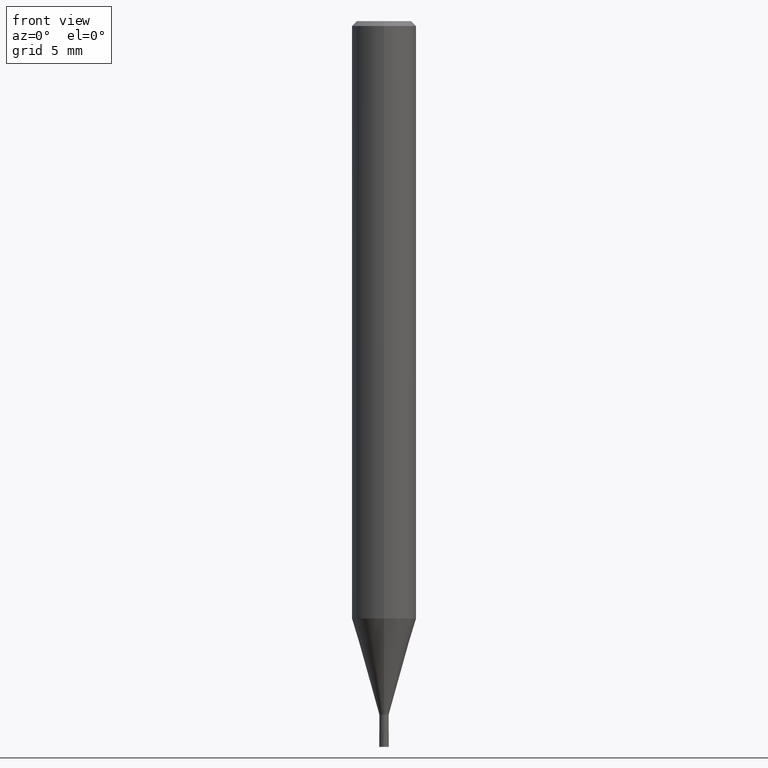
[diagram: clean part render]
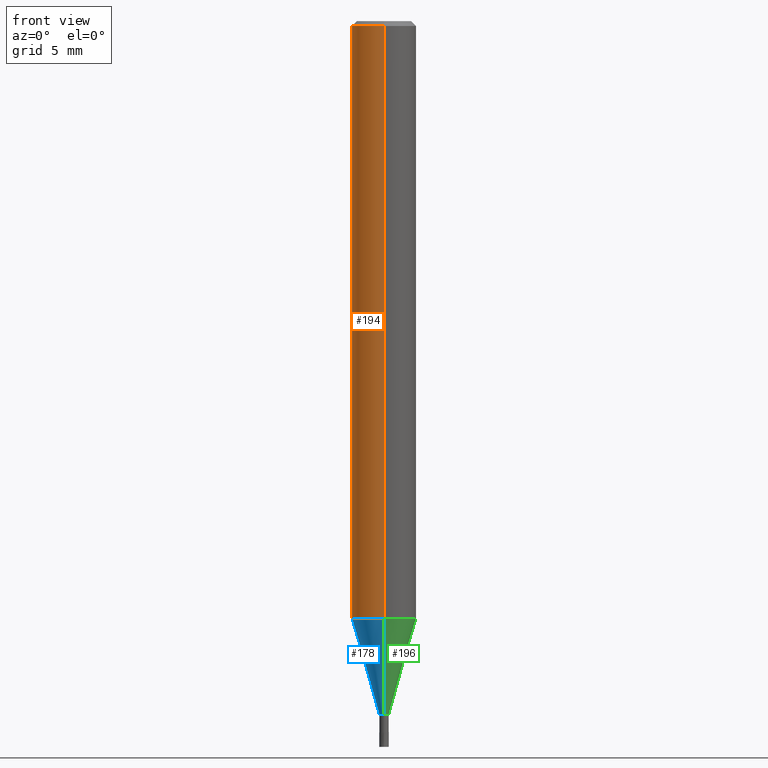
[diagram: same view with three faces highlighted in distinct colors, each labeled with its STEP entity id]
A machine part, front view with three faces highlighted in distinct colors.
Their STEP definitions:

[orange] entity #194 — the highlighted cylindrical surface (edge-blend (fillet) strip) has radius 2 mm, axis along (-0, -0, 1).
#94=VERTEX_POINT('',#231);
#98=VERTEX_POINT('',#235);
#106=EDGE_CURVE('',#98,#94,#244,.T.);
#120=VERTEX_POINT('',#260);
#122=EDGE_CURVE('',#198,#120,#262,.T.);
#186=EDGE_CURVE('',#198,#98,#334,.T.);
#194=ADVANCED_FACE('',(#342),#343,.T.);
#198=VERTEX_POINT('',#348);
#202=EDGE_CURVE('',#94,#120,#353,.T.);
#231=CARTESIAN_POINT('',(0.0,2.0,-0.299999999999997));
#235=CARTESIAN_POINT('',(2.44921270764475E-016,-2.0,-0.299999999999997));
#244=CIRCLE('',#393,2.0);
#260=CARTESIAN_POINT('',(0.0,2.0,-37.037));
#262=CIRCLE('',#415,2.0);
#334=LINE('',#506,#507);
#342=FACE_OUTER_BOUND('',#519,.T.);
#343=CYLINDRICAL_SURFACE('',#520,2.0);
#348=CARTESIAN_POINT('',(2.44921270764475E-016,-2.0,-37.037));
#353=LINE('',#531,#532);
#393=AXIS2_PLACEMENT_3D('',#556,#557,#558);
#415=AXIS2_PLACEMENT_3D('',#579,#580,#581);
#506=CARTESIAN_POINT('',(2.44921270764475E-016,-2.0,-18.6685));
#507=VECTOR('',#667,1.0);
#519=EDGE_LOOP('',(#676,#677,#678,#679));
#520=AXIS2_PLACEMENT_3D('',#680,#681,#682);
#531=CARTESIAN_POINT('',(-2.44921270764475E-016,2.0,-18.6685));
#532=VECTOR('',#699,1.0);
#556=CARTESIAN_POINT('',(0.0,0.0,-0.299999999999997));
#557=DIRECTION('',(0.0,0.0,-1.0));
#558=DIRECTION('',(0.0,1.0,0.0));
#579=CARTESIAN_POINT('',(0.0,0.0,-37.037));
#580=DIRECTION('',(0.0,0.0,-1.0));
#581=DIRECTION('',(0.0,1.0,0.0));
#667=DIRECTION('',(-0.0,-0.0,1.0));
#676=ORIENTED_EDGE('',*,*,#202,.T.);
#677=ORIENTED_EDGE('',*,*,#122,.F.);
#678=ORIENTED_EDGE('',*,*,#186,.T.);
#679=ORIENTED_EDGE('',*,*,#106,.T.);
#680=CARTESIAN_POINT('',(0.0,0.0,-18.6685));
#681=DIRECTION('',(-0.0,-0.0,1.0));
#682=DIRECTION('',(0.0,1.0,0.0));
#699=DIRECTION('',(0.0,0.0,-1.0));

[blue] entity #178 — the highlighted conical surface has half-angle 16.001 deg.
#92=EDGE_CURVE('',#172,#166,#229,.T.);
#112=VERTEX_POINT('',#251);
#126=EDGE_CURVE('',#112,#172,#266,.T.);
#138=EDGE_CURVE('',#206,#166,#280,.T.);
#140=EDGE_CURVE('',#206,#112,#282,.T.);
#166=VERTEX_POINT('',#312);
#172=VERTEX_POINT('',#318);
#178=ADVANCED_FACE('',(#324),#325,.T.);
#206=VERTEX_POINT('',#358);
#229=LINE('',#375,#376);
#251=CARTESIAN_POINT('',(2.44915147732706E-016,-1.99995,-37.037));
#266=CIRCLE('',#422,1.99995);
#280=CIRCLE('',#440,0.28995);
#282=LINE('',#443,#444);
#312=CARTESIAN_POINT('',(0.0,0.28995,-43.0));
#318=CARTESIAN_POINT('',(0.0,1.99995,-37.037));
#324=FACE_OUTER_BOUND('',#495,.T.);
#325=CONICAL_SURFACE('',#496,1.14495,0.279273950674422);
#358=CARTESIAN_POINT('',(3.55074612290798E-017,-0.28995,-43.0));
#375=CARTESIAN_POINT('',(-1.40211304480893E-016,1.14495,-40.0185));
#376=VECTOR('',#542,1.0);
#422=AXIS2_PLACEMENT_3D('',#583,#584,#585);
#440=AXIS2_PLACEMENT_3D('',#604,#605,#606);
#443=CARTESIAN_POINT('',(1.40211304480893E-016,-1.14495,-40.0185));
#444=VECTOR('',#607,1.0);
#495=EDGE_LOOP('',(#652,#653,#654,#655));
#496=AXIS2_PLACEMENT_3D('',#656,#657,#658);
#542=DIRECTION('',(3.37572295972149E-017,-0.275657802132482,-0.961255832816368));
#583=CARTESIAN_POINT('',(0.0,0.0,-37.037));
#584=DIRECTION('',(0.0,0.0,-1.0));
#585=DIRECTION('',(0.0,1.0,0.0));
#604=CARTESIAN_POINT('',(0.0,0.0,-43.0));
#605=DIRECTION('',(0.0,0.0,-1.0));
#606=DIRECTION('',(0.0,1.0,0.0));
#607=DIRECTION('',(3.37572295972149E-017,-0.275657802132482,0.961255832816368));
#652=ORIENTED_EDGE('',*,*,#92,.T.);
#653=ORIENTED_EDGE('',*,*,#138,.F.);
#654=ORIENTED_EDGE('',*,*,#140,.T.);
#655=ORIENTED_EDGE('',*,*,#126,.T.);
#656=CARTESIAN_POINT('',(0.0,0.0,-40.0185));
#657=DIRECTION('',(-0.0,-0.0,1.0));
#658=DIRECTION('',(0.0,1.0,0.0));

[green] entity #196 — the highlighted conical surface has half-angle 16.001 deg.
#92=EDGE_CURVE('',#172,#166,#229,.T.);
#112=VERTEX_POINT('',#251);
#118=EDGE_CURVE('',#166,#206,#258,.T.);
#136=EDGE_CURVE('',#172,#112,#278,.T.);
#140=EDGE_CURVE('',#206,#112,#282,.T.);
#166=VERTEX_POINT('',#312);
#172=VERTEX_POINT('',#318);
#196=ADVANCED_FACE('',(#345),#346,.T.);
#206=VERTEX_POINT('',#358);
#229=LINE('',#375,#376);
#251=CARTESIAN_POINT('',(2.44915147732706E-016,-1.99995,-37.037));
#258=CIRCLE('',#410,0.28995);
#278=CIRCLE('',#437,1.99995);
#282=LINE('',#443,#444);
#312=CARTESIAN_POINT('',(0.0,0.28995,-43.0));
#318=CARTESIAN_POINT('',(0.0,1.99995,-37.037));
#345=FACE_OUTER_BOUND('',#522,.T.);
#346=CONICAL_SURFACE('',#523,1.14495,0.279273950674422);
#358=CARTESIAN_POINT('',(3.55074612290798E-017,-0.28995,-43.0));
#375=CARTESIAN_POINT('',(-1.40211304480893E-016,1.14495,-40.0185));
#376=VECTOR('',#542,1.0);
#410=AXIS2_PLACEMENT_3D('',#576,#577,#578);
#437=AXIS2_PLACEMENT_3D('',#601,#602,#603);
#443=CARTESIAN_POINT('',(1.40211304480893E-016,-1.14495,-40.0185));
#444=VECTOR('',#607,1.0);
#522=EDGE_LOOP('',(#684,#685,#686,#687));
#523=AXIS2_PLACEMENT_3D('',#688,#689,#690);
#542=DIRECTION('',(3.37572295972149E-017,-0.275657802132482,-0.961255832816368));
#576=CARTESIAN_POINT('',(0.0,0.0,-43.0));
#577=DIRECTION('',(0.0,0.0,-1.0));
#578=DIRECTION('',(0.0,1.0,0.0));
#601=CARTESIAN_POINT('',(0.0,0.0,-37.037));
#602=DIRECTION('',(0.0,0.0,-1.0));
#603=DIRECTION('',(0.0,1.0,0.0));
#607=DIRECTION('',(3.37572295972149E-017,-0.275657802132482,0.961255832816368));
#684=ORIENTED_EDGE('',*,*,#92,.F.);
#685=ORIENTED_EDGE('',*,*,#136,.T.);
#686=ORIENTED_EDGE('',*,*,#140,.F.);
#687=ORIENTED_EDGE('',*,*,#118,.F.);
#688=CARTESIAN_POINT('',(0.0,0.0,-40.0185));
#689=DIRECTION('',(-0.0,-0.0,1.0));
#690=DIRECTION('',(0.0,1.0,0.0));